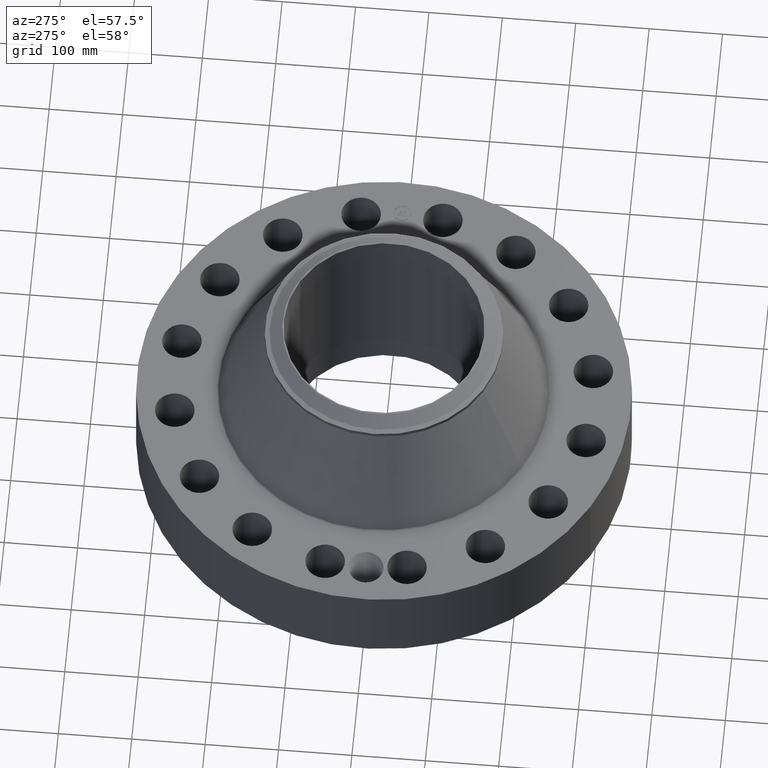
[diagram: clean part render]
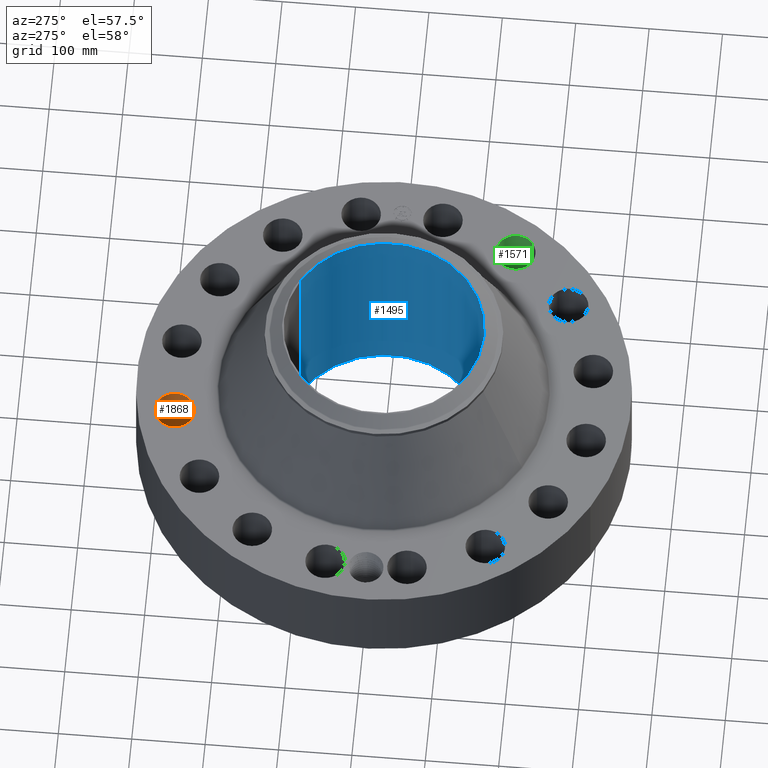
[diagram: same view with three faces highlighted in distinct colors, each labeled with its STEP entity id]
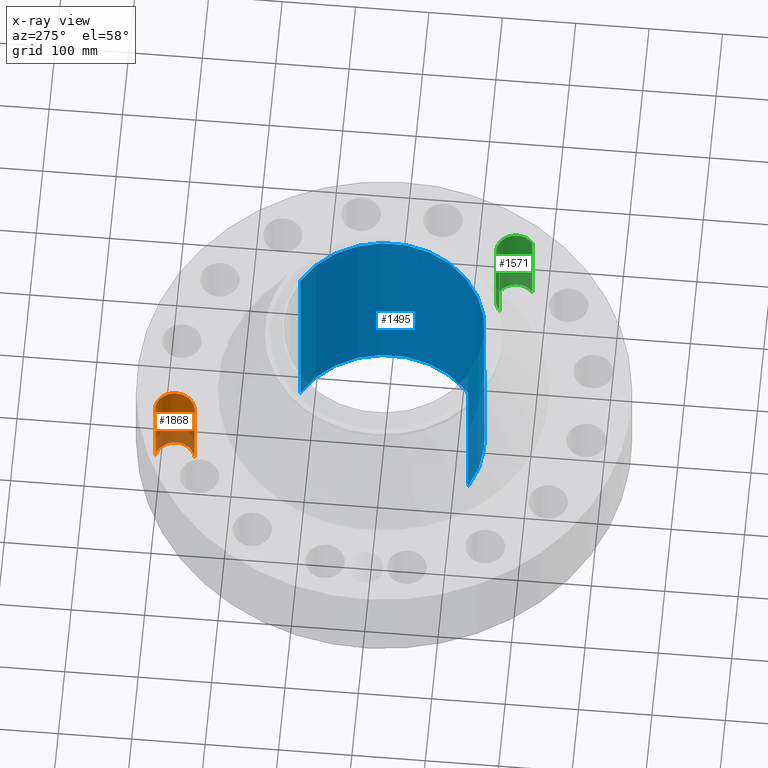
[diagram: x-ray of the same camera — body ghosted, the three highlighted faces saturated]
A machine part, auxiliary view with three faces highlighted in distinct colors.
The next image is the same camera in x-ray (body ghosted, the three faces saturated) — at least one of them is partly hidden behind the body in this view.
Their STEP definitions:

[orange] entity #1868 — the highlighted cylindrical surface (edge-blend (fillet) strip) has radius 26.924 mm, axis along (0, 0, -1).
#469=AXIS2_PLACEMENT_3D('Circle Axis2P3D',#467,#468,$) ;
#933=AXIS2_PLACEMENT_3D('Circle Axis2P3D',#931,#932,$) ;
#1843=AXIS2_PLACEMENT_3D('Cylinder Axis2P3D',#1840,#1841,#1842) ;
#462=CARTESIAN_POINT('Vertex',(-2.30828696633,9.97993070022,0.250000000001)) ;
#464=CARTESIAN_POINT('Vertex',(-2.08124527905,12.0877381089,0.250000000001)) ;
#467=CARTESIAN_POINT('Axis2P3D Location',(-2.19476612269,11.0338344046,0.250000000001)) ;
#931=CARTESIAN_POINT('Axis2P3D Location',(-2.19476612269,11.0338344046,5.13000000002)) ;
#935=CARTESIAN_POINT('Vertex',(-2.08124527905,12.0877381089,5.13000000002)) ;
#937=CARTESIAN_POINT('Vertex',(-2.30828696633,9.97993070022,5.13000000002)) ;
#1840=CARTESIAN_POINT('Axis2P3D Location',(-2.19476612269,11.0338344046,5.12606299215)) ;
#1845=CARTESIAN_POINT('Line Origine',(-2.30828696633,9.97993070022,2.69000000001)) ;
#1850=CARTESIAN_POINT('Line Origine',(-2.08124527905,12.0877381089,2.69000000001)) ;
#468=DIRECTION('Axis2P3D Direction',(0.,0.,-0.0393700787402)) ;
#932=DIRECTION('Axis2P3D Direction',(0.,0.,-0.0393700787402)) ;
#1841=DIRECTION('Axis2P3D Direction',(0.,0.,-0.0393700787402)) ;
#1842=DIRECTION('Axis2P3D XDirection',(0.00421634391778,0.0391436526652,0.)) ;
#1846=DIRECTION('Vector Direction',(0.,0.,-0.0393700787402)) ;
#1851=DIRECTION('Vector Direction',(0.,0.,-0.0393700787402)) ;
#1847=VECTOR('Line Direction',#1846,0.0393700787402) ;
#1852=VECTOR('Line Direction',#1851,0.0393700787402) ;
#1863=ORIENTED_EDGE('',*,*,#1854,.F.) ;
#1864=ORIENTED_EDGE('',*,*,#471,.T.) ;
#1865=ORIENTED_EDGE('',*,*,#1849,.T.) ;
#1866=ORIENTED_EDGE('',*,*,#939,.F.) ;
#1868=ADVANCED_FACE('PartBody',(#1867),#1844,.F.) ;
#470=CIRCLE('generated circle',#469,1.06) ;
#934=CIRCLE('generated circle',#933,1.06) ;
#1844=CYLINDRICAL_SURFACE('generated cylinder',#1843,1.06) ;
#471=EDGE_CURVE('',#465,#463,#470,.T.) ;
#939=EDGE_CURVE('',#936,#938,#934,.T.) ;
#1849=EDGE_CURVE('',#463,#938,#1848,.F.) ;
#1854=EDGE_CURVE('',#465,#936,#1853,.F.) ;
#1862=EDGE_LOOP('',(#1863,#1864,#1865,#1866)) ;
#1867=FACE_OUTER_BOUND('',#1862,.T.) ;
#1848=LINE('Line',#1845,#1847) ;
#1853=LINE('Line',#1850,#1852) ;
#463=VERTEX_POINT('',#462) ;
#465=VERTEX_POINT('',#464) ;
#936=VERTEX_POINT('',#935) ;
#938=VERTEX_POINT('',#937) ;

[blue] entity #1495 — the highlighted cylindrical surface (partial cylindrical patch) has radius 136.525 mm, axis along (0, 0, -1).
#262=AXIS2_PLACEMENT_3D('Circle Axis2P3D',#260,#261,$) ;
#1426=AXIS2_PLACEMENT_3D('Cylinder Axis2P3D',#1423,#1424,#1425) ;
#1430=AXIS2_PLACEMENT_3D('Circle Axis2P3D',#1428,#1429,$) ;
#260=CARTESIAN_POINT('Axis2P3D Location',(0.,0.,0.250000000001)) ;
#264=CARTESIAN_POINT('Vertex',(2.57691227001,4.71700627018,0.250000000001)) ;
#266=CARTESIAN_POINT('Vertex',(-2.57691227001,-4.71700627018,0.250000000001)) ;
#1423=CARTESIAN_POINT('Axis2P3D Location',(0.,0.,5.81000000002)) ;
#1428=CARTESIAN_POINT('Axis2P3D Location',(0.,0.,11.37)) ;
#1432=CARTESIAN_POINT('Vertex',(2.57691227001,4.71700627018,11.37)) ;
#1434=CARTESIAN_POINT('Vertex',(-2.57691227001,-4.71700627018,11.37)) ;
#1437=CARTESIAN_POINT('Line Origine',(2.57691227001,4.71700627018,5.81000000002)) ;
#1442=CARTESIAN_POINT('Line Origine',(-2.57691227001,-4.71700627018,5.81000000002)) ;
#1454=CARTESIAN_POINT('Control Point',(0.219395640473,-5.37052051045,0.820143615352)) ;
#1455=CARTESIAN_POINT('Control Point',(0.206921684833,-5.37103009448,0.797310192711)) ;
#1456=CARTESIAN_POINT('Control Point',(0.191478074428,-5.3716247178,0.776101019206)) ;
#1457=CARTESIAN_POINT('Control Point',(0.173344737003,-5.37225844318,0.757029221189)) ;
#1458=CARTESIAN_POINT('Control Point',(0.112133458424,-5.3740914513,0.707548714259)) ;
#1459=CARTESIAN_POINT('Control Point',(0.0349764936001,-5.37528235123,0.684025192489)) ;
#1460=CARTESIAN_POINT('Control Point',(-0.0195660182466,-5.37537126655,0.682387717556)) ;
#1461=CARTESIAN_POINT('Control Point',(-0.124153074291,-5.37406025242,0.70753299556)) ;
#1462=CARTESIAN_POINT('Control Point',(-0.203198974586,-5.37134695756,0.780451069565)) ;
#1463=CARTESIAN_POINT('Control Point',(-0.232174051109,-5.37001129445,0.826669782542)) ;
#1464=CARTESIAN_POINT('Control Point',(-0.255834445285,-5.36891195524,0.904824490837)) ;
#1465=CARTESIAN_POINT('Control Point',(-0.248293521102,-5.3692620356,0.984209131289)) ;
#1466=CARTESIAN_POINT('Control Point',(-0.242059489195,-5.36955569445,1.01078883035)) ;
#1467=CARTESIAN_POINT('Control Point',(-0.232322077143,-5.36999244174,1.03619470105)) ;
#1468=CARTESIAN_POINT('Control Point',(-0.219395640473,-5.37052051045,1.05985638466)) ;
#1469=CARTESIAN_POINT('Vertex',(0.219395640473,-5.37052051045,0.820143615352)) ;
#1471=CARTESIAN_POINT('Vertex',(-0.219395640473,-5.37052051045,1.05985638466)) ;
#1475=CARTESIAN_POINT('Control Point',(-0.219395640473,-5.37052051045,1.05985638466)) ;
#1476=CARTESIAN_POINT('Control Point',(-0.206921684838,-5.37103009448,1.08268980729)) ;
#1477=CARTESIAN_POINT('Control Point',(-0.191478074439,-5.3716247178,1.10389898079)) ;
#1478=CARTESIAN_POINT('Control Point',(-0.173344736992,-5.37225844318,1.12297077883)) ;
#1479=CARTESIAN_POINT('Control Point',(-0.112133458424,-5.3740914513,1.17245128574)) ;
#1480=CARTESIAN_POINT('Control Point',(-0.0349764936203,-5.37528235123,1.19597480751)) ;
#1481=CARTESIAN_POINT('Control Point',(0.0195660182573,-5.37537126655,1.19761228245)) ;
#1482=CARTESIAN_POINT('Control Point',(0.124153074285,-5.37406025242,1.17246700445)) ;
#1483=CARTESIAN_POINT('Control Point',(0.203198974572,-5.37134695756,1.09954893046)) ;
#1484=CARTESIAN_POINT('Control Point',(0.23217405111,-5.37001129445,1.05333021746)) ;
#1485=CARTESIAN_POINT('Control Point',(0.255834445271,-5.36891195524,0.975175509213)) ;
#1486=CARTESIAN_POINT('Control Point',(0.248293521111,-5.3692620356,0.895790868815)) ;
#1487=CARTESIAN_POINT('Control Point',(0.242059489163,-5.36955569445,0.869211169566)) ;
#1488=CARTESIAN_POINT('Control Point',(0.232322077121,-5.36999244174,0.843805298921)) ;
#1489=CARTESIAN_POINT('Control Point',(0.219395640473,-5.37052051045,0.820143615352)) ;
#261=DIRECTION('Axis2P3D Direction',(0.,0.,-0.0393700787402)) ;
#1424=DIRECTION('Axis2P3D Direction',(0.,0.,-0.0393700787402)) ;
#1425=DIRECTION('Axis2P3D XDirection',(-0.0188750212049,-0.0345504945626,0.)) ;
#1429=DIRECTION('Axis2P3D Direction',(0.,0.,-0.0393700787402)) ;
#1438=DIRECTION('Vector Direction',(0.,0.,-0.0393700787402)) ;
#1443=DIRECTION('Vector Direction',(0.,0.,-0.0393700787402)) ;
#1439=VECTOR('Line Direction',#1438,0.0393700787402) ;
#1444=VECTOR('Line Direction',#1443,0.0393700787402) ;
#1448=ORIENTED_EDGE('',*,*,#1436,.F.) ;
#1449=ORIENTED_EDGE('',*,*,#1441,.T.) ;
#1450=ORIENTED_EDGE('',*,*,#268,.T.) ;
#1451=ORIENTED_EDGE('',*,*,#1446,.F.) ;
#1492=ORIENTED_EDGE('',*,*,#1473,.F.) ;
#1493=ORIENTED_EDGE('',*,*,#1490,.F.) ;
#1494=FACE_BOUND('',#1491,.T.) ;
#1495=ADVANCED_FACE('PartBody',(#1452,#1494),#1427,.F.) ;
#1453=B_SPLINE_CURVE_WITH_KNOTS('',5,(#1454,#1455,#1456,#1457,#1458,#1459,#1460,#1461,#1462,#1463,#1464,#1465,#1466,#1467,#1468),.UNSPECIFIED.,.F.,.U.,(6,3,3,3,6),(0.,4.67396039932,14.0222464036,23.3722421911,28.2157461156),.UNSPECIFIED.) ;
#1474=B_SPLINE_CURVE_WITH_KNOTS('',5,(#1475,#1476,#1477,#1478,#1479,#1480,#1481,#1482,#1483,#1484,#1485,#1486,#1487,#1488,#1489),.UNSPECIFIED.,.F.,.U.,(6,3,3,3,6),(0.,4.6739603976,14.0222464005,23.3722421867,28.215746103),.UNSPECIFIED.) ;
#263=CIRCLE('generated circle',#262,5.37500000002) ;
#1431=CIRCLE('generated circle',#1430,5.37500000002) ;
#1427=CYLINDRICAL_SURFACE('generated cylinder',#1426,5.37500000002) ;
#268=EDGE_CURVE('',#265,#267,#263,.T.) ;
#1436=EDGE_CURVE('',#1433,#1435,#1431,.T.) ;
#1441=EDGE_CURVE('',#1433,#265,#1440,.T.) ;
#1446=EDGE_CURVE('',#1435,#267,#1445,.T.) ;
#1473=EDGE_CURVE('',#1470,#1472,#1453,.T.) ;
#1490=EDGE_CURVE('',#1472,#1470,#1474,.T.) ;
#1447=EDGE_LOOP('',(#1448,#1449,#1450,#1451)) ;
#1491=EDGE_LOOP('',(#1492,#1493)) ;
#1452=FACE_OUTER_BOUND('',#1447,.T.) ;
#1440=LINE('Line',#1437,#1439) ;
#1445=LINE('Line',#1442,#1444) ;
#265=VERTEX_POINT('',#264) ;
#267=VERTEX_POINT('',#266) ;
#1433=VERTEX_POINT('',#1432) ;
#1435=VERTEX_POINT('',#1434) ;
#1470=VERTEX_POINT('',#1469) ;
#1472=VERTEX_POINT('',#1471) ;

[green] entity #1571 — the highlighted cylindrical surface (edge-blend (fillet) strip) has radius 26.924 mm, axis along (0, -0, -1).
#280=AXIS2_PLACEMENT_3D('Circle Axis2P3D',#278,#279,$) ;
#762=AXIS2_PLACEMENT_3D('Circle Axis2P3D',#760,#761,$) ;
#1553=AXIS2_PLACEMENT_3D('Cylinder Axis2P3D',#1550,#1551,#1552) ;
#278=CARTESIAN_POINT('Axis2P3D Location',(9.35403313844,-6.2501651215,0.250000000001)) ;
#282=CARTESIAN_POINT('Vertex',(8.68908204072,-5.42467130708,0.250000000001)) ;
#284=CARTESIAN_POINT('Vertex',(10.0189842362,-7.07565893591,0.250000000001)) ;
#755=CARTESIAN_POINT('Vertex',(10.0189842362,-7.07565893591,5.13000000002)) ;
#757=CARTESIAN_POINT('Vertex',(8.68908204072,-5.42467130708,5.13000000002)) ;
#760=CARTESIAN_POINT('Axis2P3D Location',(9.35403313844,-6.2501651215,5.13000000002)) ;
#1550=CARTESIAN_POINT('Axis2P3D Location',(9.35403313844,-6.2501651215,5.12606299215)) ;
#1555=CARTESIAN_POINT('Line Origine',(8.68908204072,-5.42467130708,2.69000000001)) ;
#1560=CARTESIAN_POINT('Line Origine',(10.0189842362,-7.07565893591,2.69000000001)) ;
#279=DIRECTION('Axis2P3D Direction',(0.,0.,-0.0393700787402)) ;
#761=DIRECTION('Axis2P3D Direction',(0.,0.,-0.0393700787402)) ;
#1551=DIRECTION('Axis2P3D Direction',(0.,-0.,-0.0393700787402)) ;
#1552=DIRECTION('Axis2P3D XDirection',(0.0246973368639,-0.030660147616,0.)) ;
#1556=DIRECTION('Vector Direction',(0.,0.,-0.0393700787402)) ;
#1561=DIRECTION('Vector Direction',(0.,0.,-0.0393700787402)) ;
#1557=VECTOR('Line Direction',#1556,0.0393700787402) ;
#1562=VECTOR('Line Direction',#1561,0.0393700787402) ;
#1566=ORIENTED_EDGE('',*,*,#1559,.F.) ;
#1567=ORIENTED_EDGE('',*,*,#286,.T.) ;
#1568=ORIENTED_EDGE('',*,*,#1564,.T.) ;
#1569=ORIENTED_EDGE('',*,*,#764,.F.) ;
#1571=ADVANCED_FACE('PartBody',(#1570),#1554,.F.) ;
#281=CIRCLE('generated circle',#280,1.06) ;
#763=CIRCLE('generated circle',#762,1.06) ;
#1554=CYLINDRICAL_SURFACE('generated cylinder',#1553,1.06) ;
#286=EDGE_CURVE('',#283,#285,#281,.T.) ;
#764=EDGE_CURVE('',#758,#756,#763,.T.) ;
#1559=EDGE_CURVE('',#283,#758,#1558,.F.) ;
#1564=EDGE_CURVE('',#285,#756,#1563,.F.) ;
#1565=EDGE_LOOP('',(#1566,#1567,#1568,#1569)) ;
#1570=FACE_OUTER_BOUND('',#1565,.T.) ;
#1558=LINE('Line',#1555,#1557) ;
#1563=LINE('Line',#1560,#1562) ;
#283=VERTEX_POINT('',#282) ;
#285=VERTEX_POINT('',#284) ;
#756=VERTEX_POINT('',#755) ;
#758=VERTEX_POINT('',#757) ;